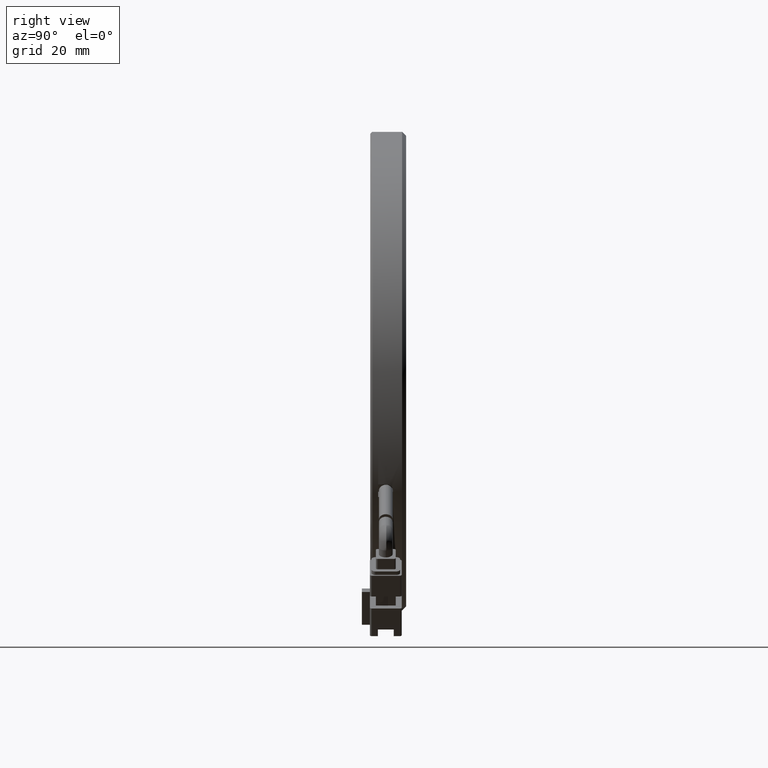
[diagram: clean part render]
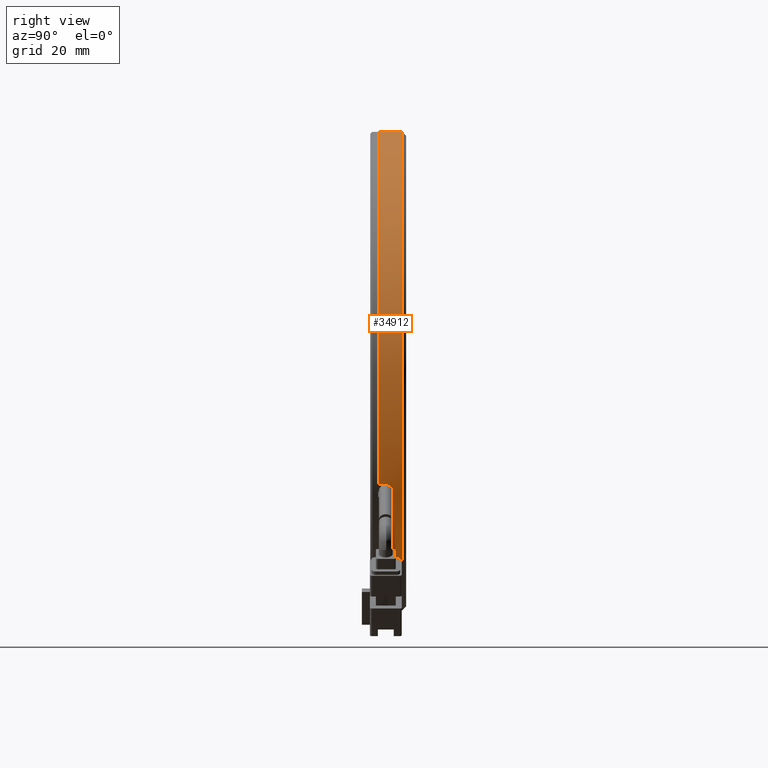
[diagram: same view with one face highlighted and labeled with its STEP entity id]
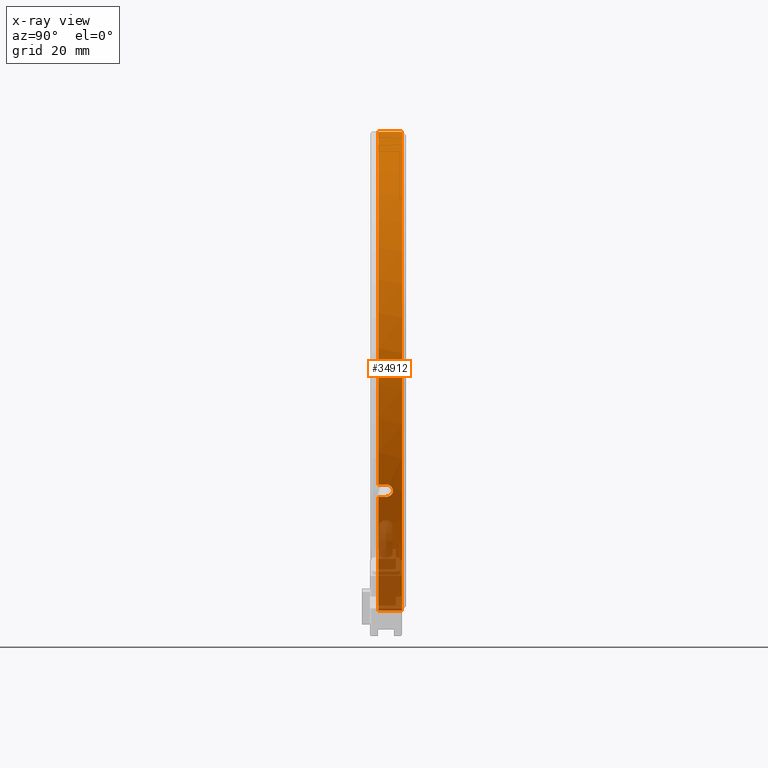
[diagram: x-ray of the same camera — body ghosted, the highlighted face saturated]
A machine part, right view. The second image highlights one B-rep face of the part: STEP entity #34912.
The next image is the same camera in x-ray: the body ghosted, the highlighted face saturated — about 16% of this face is hidden behind the body in this view.
In plain terms, the highlighted cylindrical surface (partial cylindrical patch) has radius 60 mm, axis along (0, 1, -0).
Its self-contained STEP definition (entity closure, byte-faithful):
#571 = CARTESIAN_POINT ( 'NONE',  ( 56.45624510954999000, 21.01889671361172800, 0.0000000000000000000 ) ) ;
#1808 = VECTOR ( 'NONE', #61434, 1000.000000000000000 ) ;
#3711 = CARTESIAN_POINT ( 'NONE',  ( 107.5166247765962700, 23.36610255110186800, -31.51004566347933500 ) ) ;
#3927 = CARTESIAN_POINT ( 'NONE',  ( 108.5031715242172700, 24.71889982597300800, -29.85207985124088000 ) ) ;
#4104 = FACE_OUTER_BOUND ( 'NONE', #41930, .T. ) ;
#4147 = CARTESIAN_POINT ( 'NONE',  ( 109.2889338473640900, 23.17422294855794000, -28.43768801162763500 ) ) ;
#5520 = DIRECTION ( 'NONE',  ( -0.0000000000000000000, -1.000000000000000000, 0.0000000000000000000 ) ) ;
#7291 = CARTESIAN_POINT ( 'NONE',  ( 107.4943813872370300, 21.01889671361172800, -31.54534268795070100 ) ) ;
#8721 = CARTESIAN_POINT ( 'NONE',  ( 107.6107933539878000, 23.79366252378922700, -31.35694148969325600 ) ) ;
#8946 = CARTESIAN_POINT ( 'NONE',  ( 108.7609644062288900, 24.58371660644635900, -29.39706747532097000 ) ) ;
#9306 = AXIS2_PLACEMENT_3D ( 'NONE', #55839, #26169, #60802 ) ;
#10161 = ORIENTED_EDGE ( 'NONE', *, *, #22530, .T. ) ;
#10283 = CARTESIAN_POINT ( 'NONE',  ( 56.45624510954999700, 21.01889671361172800, -60.00000000000000000 ) ) ;
#11079 = VERTEX_POINT ( 'NONE', #7291 ) ;
#11262 = VERTEX_POINT ( 'NONE', #23911 ) ;
#12003 = VERTEX_POINT ( 'NONE', #55769 ) ;
#12665 = DIRECTION ( 'NONE',  ( -0.0000000000000000000, -1.000000000000000000, 0.0000000000000000000 ) ) ;
#12827 = VERTEX_POINT ( 'NONE', #62534 ) ;
#13273 = CARTESIAN_POINT ( 'NONE',  ( 109.2937288828685500, 23.01888405545264500, -28.42887868770792200 ) ) ;
#13716 = CARTESIAN_POINT ( 'NONE',  ( 107.6879046395145400, 24.01376433703568100, -31.23035833033889800 ) ) ;
#13926 = CARTESIAN_POINT ( 'NONE',  ( 108.8956600383108100, 24.43678434204864700, -29.15632781080002200 ) ) ;
#14905 = CARTESIAN_POINT ( 'NONE',  ( 109.2943813872259500, 21.01889671361520200, -28.42765123433125800 ) ) ;
#15625 = CARTESIAN_POINT ( 'NONE',  ( 56.45624510954999700, 21.01889671361172800, -60.00000000000000000 ) ) ;
#16752 = VERTEX_POINT ( 'NONE', #14905 ) ;
#17688 = ORIENTED_EDGE ( 'NONE', *, *, #27186, .F. ) ;
#18084 = CIRCLE ( 'NONE', #9306, 60.00000000000000000 ) ;
#18250 = CARTESIAN_POINT ( 'NONE',  ( 109.2943934254215900, 21.68556338027922300, -28.42765818458593300 ) ) ;
#18691 = CARTESIAN_POINT ( 'NONE',  ( 107.7350372713229200, 24.12167807966546100, -31.15270527277187900 ) ) ;
#18909 = CARTESIAN_POINT ( 'NONE',  ( 108.9616015127010400, 24.33990591241205000, -29.03759658798803400 ) ) ;
#20030 = EDGE_CURVE ( 'NONE', #16752, #31283, #35207, .T. ) ;
#20128 = EDGE_CURVE ( 'NONE', #12003, #16752, #41719, .T. ) ;
#20159 = DIRECTION ( 'NONE',  ( -0.0000000000000000000, -1.000000000000000000, 0.0000000000000000000 ) ) ;
#22530 = EDGE_CURVE ( 'NONE', #34318, #11262, #63097, .T. ) ;
#23606 = CARTESIAN_POINT ( 'NONE',  ( 107.7748428832660300, 24.20205294627882600, -31.08700975351547800 ) ) ;
#23820 = CARTESIAN_POINT ( 'NONE',  ( 109.0001816388508600, 24.27415653597795500, -28.96781768859114000 ) ) ;
#23911 = CARTESIAN_POINT ( 'NONE',  ( 56.45624510954999000, 27.01889671361802000, -60.00000000000085300 ) ) ;
#24118 = CIRCLE ( 'NONE', #37859, 60.00000000000000000 ) ;
#26169 = DIRECTION ( 'NONE',  ( 0.0000000000000000000, 1.000000000000000000, 0.0000000000000000000 ) ) ;
#26631 = AXIS2_PLACEMENT_3D ( 'NONE', #571, #30191, #55111 ) ;
#27186 = EDGE_CURVE ( 'NONE', #34318, #11079, #24118, .T. ) ;
#28576 = CARTESIAN_POINT ( 'NONE',  ( 108.0125124885094600, 24.54664827108939900, -30.69129563125502400 ) ) ;
#28797 = CARTESIAN_POINT ( 'NONE',  ( 109.1299295121298500, 24.02104908705103600, -28.73203930713465200 ) ) ;
#28980 = ORIENTED_EDGE ( 'NONE', *, *, #40088, .F. ) ;
#30191 = DIRECTION ( 'NONE',  ( 0.0000000000000000000, 1.000000000000000000, -0.0000000000000000000 ) ) ;
#31283 = VERTEX_POINT ( 'NONE', #55713 ) ;
#33587 = CARTESIAN_POINT ( 'NONE',  ( 108.3323343531352900, 24.71889360071834900, -30.14797695285378200 ) ) ;
#33663 = AXIS2_PLACEMENT_3D ( 'NONE', #42269, #12665, #47232 ) ;
#33797 = CARTESIAN_POINT ( 'NONE',  ( 109.2749392819846400, 23.36606992867571700, -28.46455475174066400 ) ) ;
#34318 = VERTEX_POINT ( 'NONE', #15625 ) ;
#34912 = ADVANCED_FACE ( 'NONE', ( #4104 ), #37365, .T. ) ;
#35182 = CARTESIAN_POINT ( 'NONE',  ( 56.45624510954999000, 21.01889671361172800, 0.0000000000000000000 ) ) ;
#35207 = CIRCLE ( 'NONE', #33663, 60.00000000000000000 ) ;
#36000 = ORIENTED_EDGE ( 'NONE', *, *, #20128, .F. ) ;
#37365 = CYLINDRICAL_SURFACE ( 'NONE', #26631, 60.00000000000000000 ) ;
#37617 = VECTOR ( 'NONE', #20159, 1000.000000000000000 ) ;
#37859 = AXIS2_PLACEMENT_3D ( 'NONE', #35182, #5520, #40150 ) ;
#38327 = CARTESIAN_POINT ( 'NONE',  ( 107.5820754639397700, 23.68334906548545900, -31.40378674532980700 ) ) ;
#38546 = CARTESIAN_POINT ( 'NONE',  ( 108.6025386758481800, 24.69477643633649300, -29.67784568662406400 ) ) ;
#38751 = CARTESIAN_POINT ( 'NONE',  ( 109.2937288828685500, 23.01888405545264500, -28.42887868770792200 ) ) ;
#40088 = EDGE_CURVE ( 'NONE', #45904, #12003, #55812, .T. ) ;
#40143 = CARTESIAN_POINT ( 'NONE',  ( 107.4949962863105200, 23.01888387335434800, -31.54436103309216900 ) ) ;
#40150 = DIRECTION ( 'NONE',  ( 0.0000000000000000000, 0.0000000000000000000, 1.000000000000000000 ) ) ;
#41040 = EDGE_CURVE ( 'NONE', #45904, #11079, #62397, .T. ) ;
#41719 = B_SPLINE_CURVE_WITH_KNOTS ( 'NONE', 3,
 ( #13273, #47861, #18250, #52843 ),
 .UNSPECIFIED., .F., .F.,
 ( 4, 4 ),
 ( 0.0000000000000000000, 1.000000000000000000 ),
 .UNSPECIFIED. ) ;
#41930 = EDGE_LOOP ( 'NONE', ( #17688, #10161, #49812, #43116, #44854, #36000, #28980, #60035 ) ) ;
#41991 = CARTESIAN_POINT ( 'NONE',  ( 56.45624510954999000, 21.01889671361172800, 60.00000000000000000 ) ) ;
#42269 = CARTESIAN_POINT ( 'NONE',  ( 56.45624510954999000, 21.01889671361172800, 0.0000000000000000000 ) ) ;
#43116 = ORIENTED_EDGE ( 'NONE', *, *, #63742, .F. ) ;
#43328 = CARTESIAN_POINT ( 'NONE',  ( 107.6669906044507000, 23.95880466372662800, -31.26473926482467600 ) ) ;
#43535 = CARTESIAN_POINT ( 'NONE',  ( 108.8151912532197500, 24.53416590338430200, -29.30048672501694200 ) ) ;
#44854 = ORIENTED_EDGE ( 'NONE', *, *, #20030, .F. ) ;
#44891 = DIRECTION ( 'NONE',  ( 0.0000000000000000000, 1.000000000000000000, -0.0000000000000000000 ) ) ;
#45904 = VERTEX_POINT ( 'NONE', #40143 ) ;
#47232 = DIRECTION ( 'NONE',  ( 0.0000000000000000000, 0.0000000000000000000, 1.000000000000000000 ) ) ;
#47861 = CARTESIAN_POINT ( 'NONE',  ( 109.2944054636095800, 22.35223004694671500, -28.42766513483700700 ) ) ;
#48074 = CARTESIAN_POINT ( 'NONE',  ( 107.4949962863105200, 23.01888387335434800, -31.54436103309216900 ) ) ;
#48286 = CARTESIAN_POINT ( 'NONE',  ( 107.7228125748161200, 24.09486823324868600, -31.17285858922836500 ) ) ;
#48404 = VECTOR ( 'NONE', #44891, 1000.000000000000000 ) ;
#48504 = CARTESIAN_POINT ( 'NONE',  ( 108.9223255102946700, 24.40049106353628300, -29.10841468755369400 ) ) ;
#49812 = ORIENTED_EDGE ( 'NONE', *, *, #60351, .F. ) ;
#52843 = CARTESIAN_POINT ( 'NONE',  ( 109.2943813872259500, 21.01889671361520200, -28.42765123433125800 ) ) ;
#52900 = LINE ( 'NONE', #41991, #1808 ) ;
#53290 = CARTESIAN_POINT ( 'NONE',  ( 107.7606972846711200, 24.17462165868801800, -31.11036769098585400 ) ) ;
#53499 = CARTESIAN_POINT ( 'NONE',  ( 108.9745723683074500, 24.31868786522907700, -29.01416716586086200 ) ) ;
#54780 = CARTESIAN_POINT ( 'NONE',  ( 107.4943813872339100, 21.01889671361172800, -31.54534268795575300 ) ) ;
#55111 = DIRECTION ( 'NONE',  ( 0.0000000000000000000, 0.0000000000000000000, 1.000000000000000000 ) ) ;
#55713 = CARTESIAN_POINT ( 'NONE',  ( 56.45624510954999000, 21.01889671361172800, 60.00000000000000000 ) ) ;
#55769 = CARTESIAN_POINT ( 'NONE',  ( 109.2937288828685500, 23.01888405545264500, -28.42887868770792200 ) ) ;
#55812 = B_SPLINE_CURVE_WITH_KNOTS ( 'NONE', 3,
 ( #48074, #58043, #3711, #38327, #8721, #43328, #13716, #48286, #18691, #53290, #23606, #58265, #28576, #63201, #33587, #3927, #38546, #8946, #43535, #13926, #48504, #18909, #53499, #23820, #58477, #28797, #63420, #33797, #4147, #38751 ),
 .UNSPECIFIED., .F., .F.,
 ( 4, 2, 2, 2, 2, 2, 2, 2, 2, 2, 2, 2, 2, 2, 4 ),
 ( 0.0000000000000000000, 0.1250000000000116600, 0.1875000000000191000, 0.2187500000000229800, 0.2343750000000253700, 0.2500000000000277600, 0.3750000000000227600, 0.5000000000000177600, 0.6250000000000127700, 0.6875000000000102100, 0.7187500000000088800, 0.7343750000000086600, 0.7500000000000084400, 0.8750000000000042200, 1.000000000000000000 ),
 .UNSPECIFIED. ) ;
#55839 = CARTESIAN_POINT ( 'NONE',  ( 56.45624510954999000, 27.01889671361802000, 0.0000000000000000000 ) ) ;
#58043 = CARTESIAN_POINT ( 'NONE',  ( 107.5003506791527700, 23.17424804708871700, -31.53560558771098600 ) ) ;
#58265 = CARTESIAN_POINT ( 'NONE',  ( 107.8949260850538100, 24.42144092546307000, -30.88858445563404200 ) ) ;
#58477 = CARTESIAN_POINT ( 'NONE',  ( 109.0121585626487900, 24.25214116653174300, -28.94609995998086300 ) ) ;
#60035 = ORIENTED_EDGE ( 'NONE', *, *, #41040, .T. ) ;
#60351 = EDGE_CURVE ( 'NONE', #12827, #11262, #18084, .T. ) ;
#60802 = DIRECTION ( 'NONE',  ( 0.0000000000000000000, 0.0000000000000000000, -1.000000000000000000 ) ) ;
#61434 = DIRECTION ( 'NONE',  ( 0.0000000000000000000, 1.000000000000000000, -0.0000000000000000000 ) ) ;
#62397 = LINE ( 'NONE', #54780, #37617 ) ;
#62534 = CARTESIAN_POINT ( 'NONE',  ( 56.45624510954999700, 27.01889671361802000, 60.00000000000085300 ) ) ;
#63097 = LINE ( 'NONE', #10283, #48404 ) ;
#63201 = CARTESIAN_POINT ( 'NONE',  ( 108.2311034291219400, 24.69475282451764300, -30.32118793655982700 ) ) ;
#63420 = CARTESIAN_POINT ( 'NONE',  ( 109.1958759956339000, 23.78908320515649400, -28.61097023484240200 ) ) ;
#63742 = EDGE_CURVE ( 'NONE', #31283, #12827, #52900, .T. ) ;